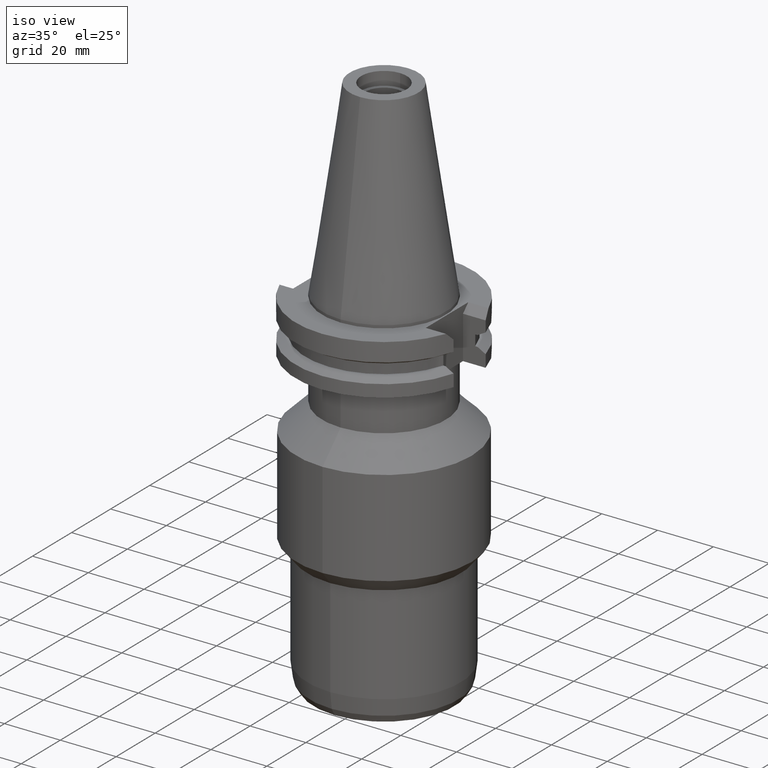
[diagram: clean part render]
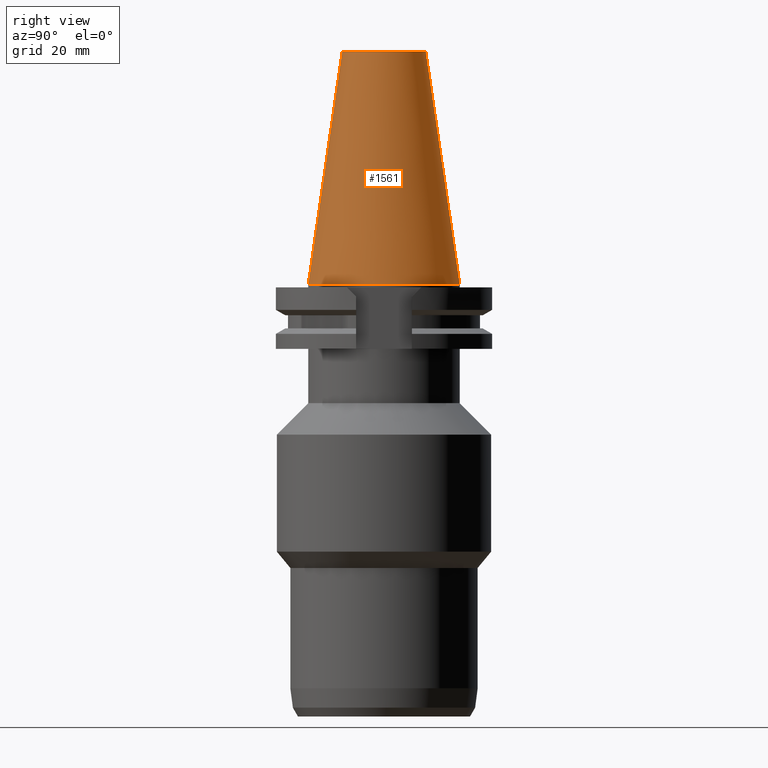
[diagram: tour spotlight — one face highlighted and labeled with its STEP entity id]
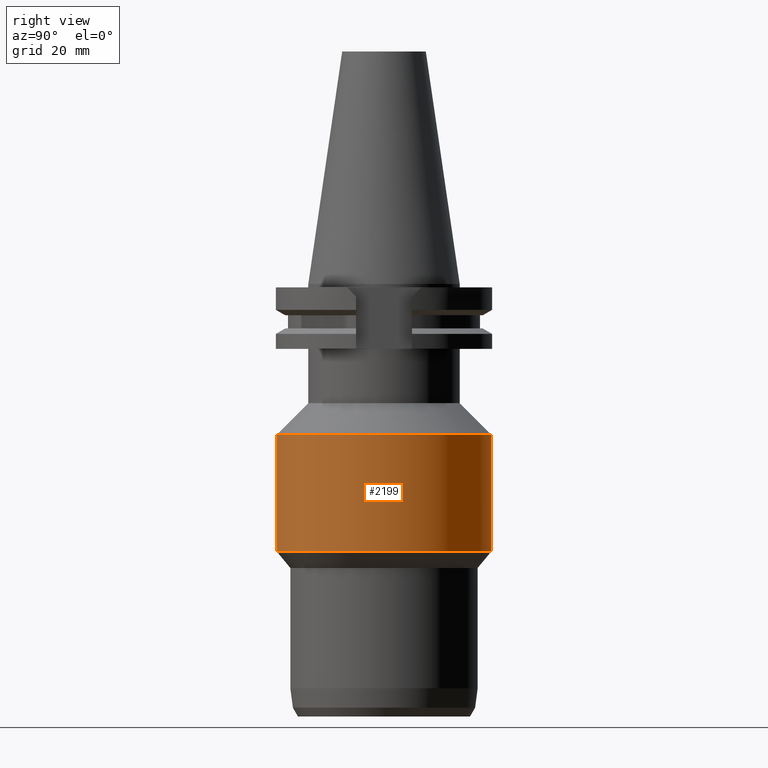
[diagram: tour spotlight — one face highlighted and labeled with its STEP entity id]
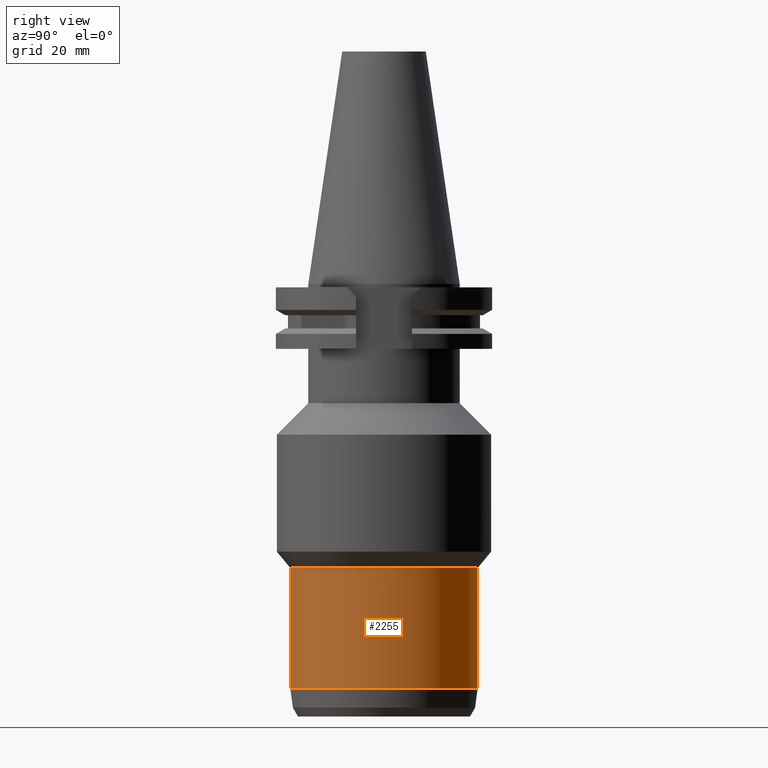
[diagram: tour spotlight — one face highlighted and labeled with its STEP entity id]
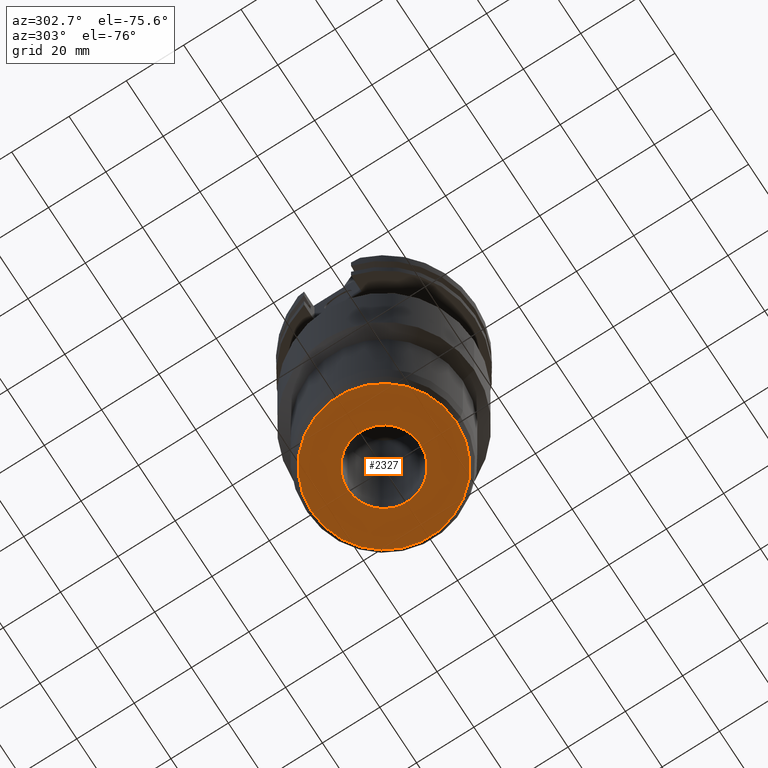
[diagram: tour spotlight — one face highlighted and labeled with its STEP entity id]
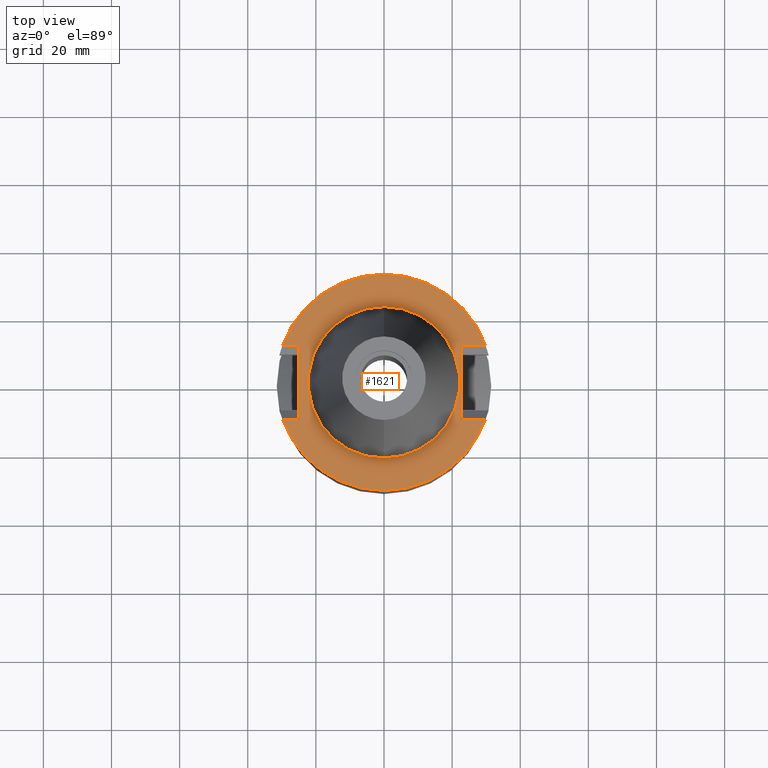
[diagram: tour spotlight — one face highlighted and labeled with its STEP entity id]
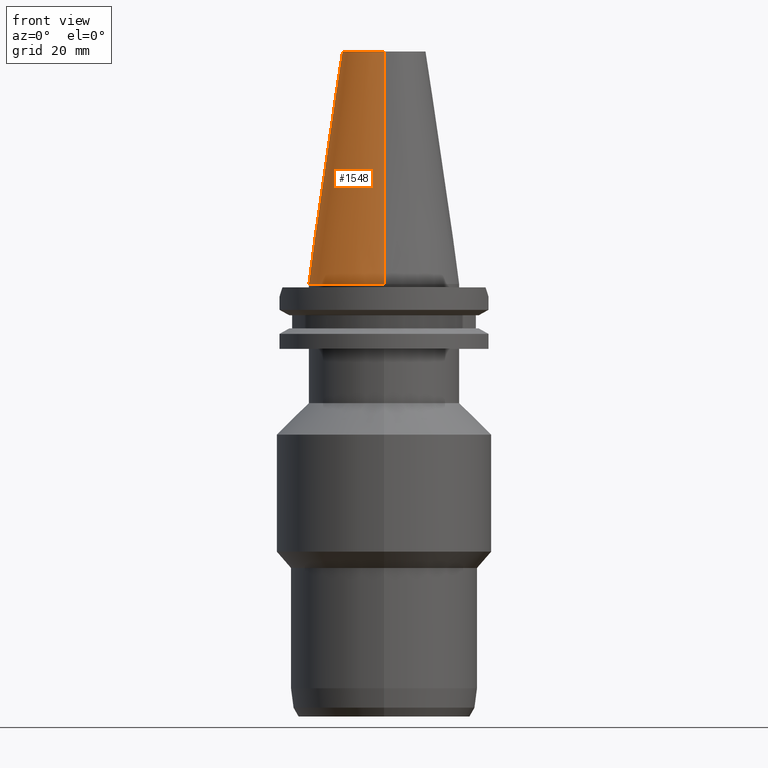
[diagram: tour spotlight — one face highlighted and labeled with its STEP entity id]
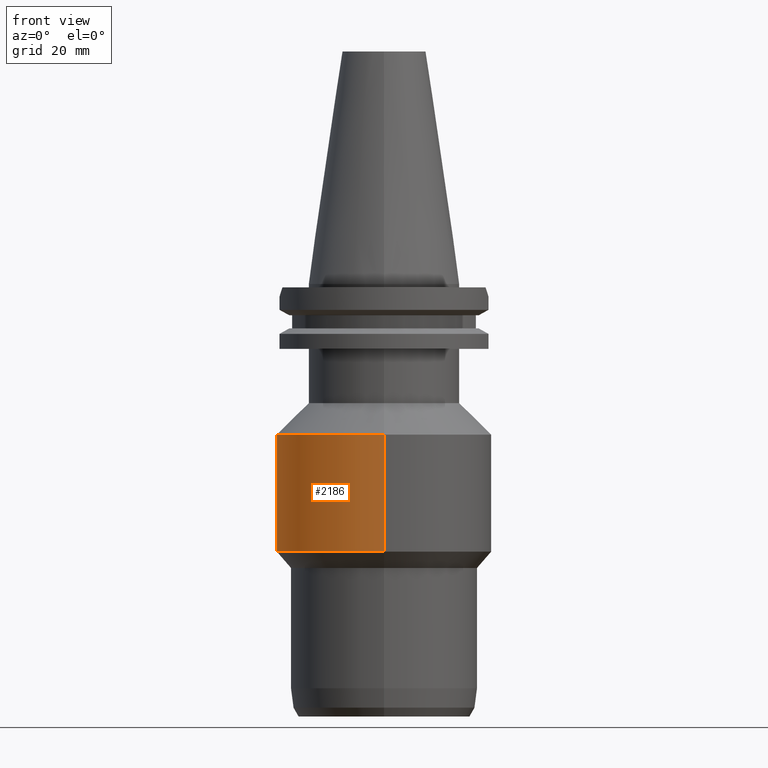
[diagram: tour spotlight — one face highlighted and labeled with its STEP entity id]
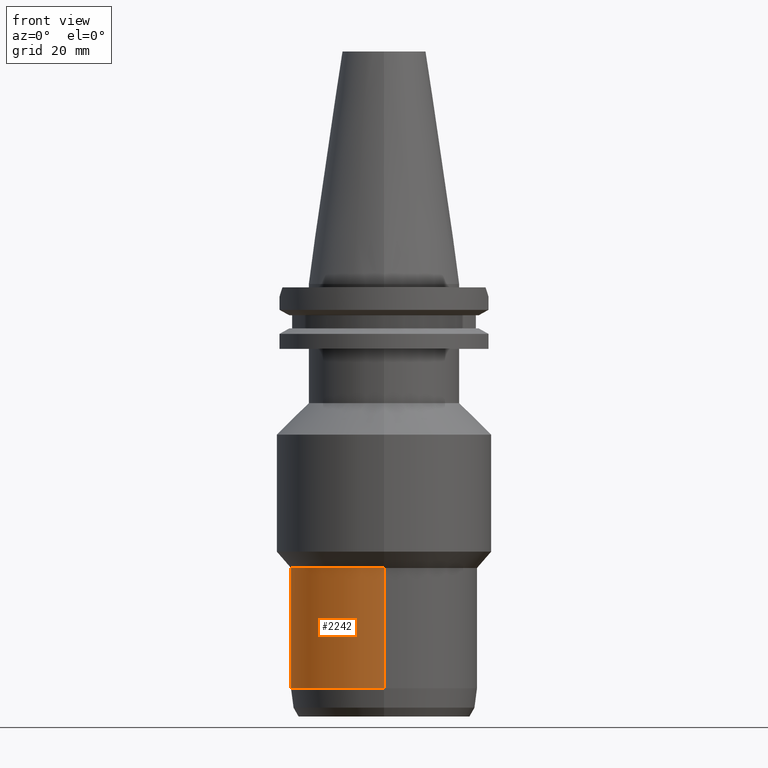
[diagram: tour spotlight — one face highlighted and labeled with its STEP entity id]
A machine part: a face-by-face anatomy tour. The part has 65 B-rep faces; the first image is the clean iso view, then the 8 largest visible faces are spotlighted one at a time (largest first), each with its STEP entity span.

Face 1 — right view, entity #1561. In plain terms, the highlighted conical surface has half-angle 8.297 deg.
Definition (entity closure, byte-faithful):
#26=CARTESIAN_POINT('',(0.E0,1.642557519356E-14,6.825E1));
#27=DIRECTION('',(0.E0,0.E0,-1.E0));
#28=DIRECTION('',(0.E0,1.E0,0.E0));
#29=AXIS2_PLACEMENT_3D('',#26,#27,#28);
#50=DIRECTION('',(0.E0,-1.443069799457E-1,-9.895329683942E-1));
#51=VECTOR('',#50,6.897193138573E1);
#52=CARTESIAN_POINT('',(0.E0,-1.227186888070E1,6.825E1));
#53=LINE('',#52,#51);
#65=DIRECTION('',(0.E0,1.443069799457E-1,-9.895329683942E-1));
#66=VECTOR('',#65,6.897193138573E1);
#67=CARTESIAN_POINT('',(0.E0,1.227186888070E1,6.825E1));
#68=LINE('',#67,#66);
#72=CARTESIAN_POINT('',(0.E0,1.642557519356E-14,-3.126388037344E-13));
#73=DIRECTION('',(0.E0,0.E0,-1.E0));
#74=DIRECTION('',(0.E0,1.E0,0.E0));
#75=AXIS2_PLACEMENT_3D('',#72,#73,#74);
#1302=CARTESIAN_POINT('',(0.E0,-1.227186888070E1,6.825E1));
#1303=CARTESIAN_POINT('',(0.E0,1.227186888070E1,6.825E1));
#1304=VERTEX_POINT('',#1302);
#1305=VERTEX_POINT('',#1303);
#1508=CARTESIAN_POINT('',(0.E0,2.2225E1,-2.131628207280E-13));
#1509=VERTEX_POINT('',#1508);
#1510=CARTESIAN_POINT('',(0.E0,-2.2225E1,-2.131628207280E-13));
#1511=VERTEX_POINT('',#1510);
#1549=CARTESIAN_POINT('',(0.E0,1.642557519356E-14,3.4125E1));
#1550=DIRECTION('',(0.E0,0.E0,-1.E0));
#1551=DIRECTION('',(0.E0,-1.E0,0.E0));
#1552=AXIS2_PLACEMENT_3D('',#1549,#1550,#1551);
#1553=CONICAL_SURFACE('',#1552,1.724843444035E1,8.29715E0);
#1554=ORIENTED_EDGE('',*,*,#1539,.T.);
#1556=ORIENTED_EDGE('',*,*,#1555,.T.);
#1557=ORIENTED_EDGE('',*,*,#1542,.F.);
#1558=ORIENTED_EDGE('',*,*,#1523,.F.);
#1559=EDGE_LOOP('',(#1554,#1556,#1557,#1558));
#1560=FACE_OUTER_BOUND('',#1559,.F.);
#30=CIRCLE('',#29,1.227186888070E1);
#76=CIRCLE('',#75,2.2225E1);
#1523=EDGE_CURVE('',#1305,#1304,#30,.T.);
#1539=EDGE_CURVE('',#1305,#1509,#68,.T.);
#1542=EDGE_CURVE('',#1304,#1511,#53,.T.);
#1555=EDGE_CURVE('',#1509,#1511,#76,.T.);
#1561=ADVANCED_FACE('',(#1560),#1553,.T.);

Face 2 — right view, entity #2199. In plain terms, the highlighted cylindrical surface (partial cylindrical patch) has radius 31.45 mm, axis along (0, 0, -1).
Definition (entity closure, byte-faithful):
#869=CARTESIAN_POINT('',(0.E0,0.E0,-4.4225E1));
#870=DIRECTION('',(0.E0,0.E0,-1.E0));
#871=DIRECTION('',(0.E0,1.E0,0.E0));
#872=AXIS2_PLACEMENT_3D('',#869,#870,#871);
#908=DIRECTION('',(0.E0,-2.077368580186E-14,-1.E0));
#909=VECTOR('',#908,3.4375E1);
#910=CARTESIAN_POINT('',(0.E0,-3.145E1,-4.4225E1));
#911=LINE('',#910,#909);
#915=DIRECTION('',(0.E0,2.077368580186E-14,-1.E0));
#916=VECTOR('',#915,3.4375E1);
#917=CARTESIAN_POINT('',(0.E0,3.145E1,-4.4225E1));
#918=LINE('',#917,#916);
#937=CARTESIAN_POINT('',(0.E0,0.E0,-7.86E1));
#938=DIRECTION('',(0.E0,0.E0,1.E0));
#939=DIRECTION('',(0.E0,-1.E0,0.E0));
#940=AXIS2_PLACEMENT_3D('',#937,#938,#939);
#1366=CARTESIAN_POINT('',(0.E0,3.145E1,-7.86E1));
#1367=VERTEX_POINT('',#1366);
#1368=CARTESIAN_POINT('',(0.E0,-3.145E1,-7.86E1));
#1369=VERTEX_POINT('',#1368);
#1370=CARTESIAN_POINT('',(0.E0,3.145E1,-4.4225E1));
#1371=VERTEX_POINT('',#1370);
#1372=CARTESIAN_POINT('',(0.E0,-3.145E1,-4.4225E1));
#1373=VERTEX_POINT('',#1372);
#2187=CARTESIAN_POINT('',(0.E0,2.180024383332E-14,7.80125E1));
#2188=DIRECTION('',(0.E0,0.E0,-1.E0));
#2189=DIRECTION('',(0.E0,-1.E0,0.E0));
#2190=AXIS2_PLACEMENT_3D('',#2187,#2188,#2189);
#2191=CYLINDRICAL_SURFACE('',#2190,3.145E1);
#2192=ORIENTED_EDGE('',*,*,#2177,.T.);
#2194=ORIENTED_EDGE('',*,*,#2193,.F.);
#2195=ORIENTED_EDGE('',*,*,#2180,.F.);
#2196=ORIENTED_EDGE('',*,*,#2151,.F.);
#2197=EDGE_LOOP('',(#2192,#2194,#2195,#2196));
#2198=FACE_OUTER_BOUND('',#2197,.F.);
#873=CIRCLE('',#872,3.145E1);
#941=CIRCLE('',#940,3.145E1);
#2151=EDGE_CURVE('',#1371,#1373,#873,.T.);
#2177=EDGE_CURVE('',#1371,#1367,#918,.T.);
#2180=EDGE_CURVE('',#1373,#1369,#911,.T.);
#2193=EDGE_CURVE('',#1369,#1367,#941,.T.);
#2199=ADVANCED_FACE('',(#2198),#2191,.T.);

Face 3 — right view, entity #2255. In plain terms, the highlighted cylindrical surface (partial cylindrical patch) has radius 27.5 mm, axis along (0, 0, -1).
Definition (entity closure, byte-faithful):
#929=CARTESIAN_POINT('',(0.E0,0.E0,-8.337846436593E1));
#930=DIRECTION('',(0.E0,0.E0,-1.E0));
#931=DIRECTION('',(0.E0,1.E0,0.E0));
#932=AXIS2_PLACEMENT_3D('',#929,#930,#931);
#968=DIRECTION('',(0.E0,0.E0,-1.E0));
#969=VECTOR('',#968,3.533153563407E1);
#970=CARTESIAN_POINT('',(0.E0,-2.75E1,-8.337846436593E1));
#971=LINE('',#970,#969);
#975=DIRECTION('',(0.E0,0.E0,-1.E0));
#976=VECTOR('',#975,3.533153563407E1);
#977=CARTESIAN_POINT('',(0.E0,2.75E1,-8.337846436593E1));
#978=LINE('',#977,#976);
#989=CARTESIAN_POINT('',(0.E0,0.E0,-1.1871E2));
#990=DIRECTION('',(0.E0,0.E0,1.E0));
#991=DIRECTION('',(0.E0,-1.E0,0.E0));
#992=AXIS2_PLACEMENT_3D('',#989,#990,#991);
#1358=CARTESIAN_POINT('',(0.E0,2.75E1,-1.1871E2));
#1359=VERTEX_POINT('',#1358);
#1360=CARTESIAN_POINT('',(0.E0,-2.75E1,-1.1871E2));
#1361=VERTEX_POINT('',#1360);
#1362=CARTESIAN_POINT('',(0.E0,2.75E1,-8.337846436593E1));
#1363=VERTEX_POINT('',#1362);
#1364=CARTESIAN_POINT('',(0.E0,-2.75E1,-8.337846436593E1));
#1365=VERTEX_POINT('',#1364);
#2243=CARTESIAN_POINT('',(0.E0,2.180024383332E-14,7.80125E1));
#2244=DIRECTION('',(0.E0,0.E0,-1.E0));
#2245=DIRECTION('',(0.E0,-1.E0,0.E0));
#2246=AXIS2_PLACEMENT_3D('',#2243,#2244,#2245);
#2247=CYLINDRICAL_SURFACE('',#2246,2.75E1);
#2248=ORIENTED_EDGE('',*,*,#2233,.T.);
#2250=ORIENTED_EDGE('',*,*,#2249,.F.);
#2251=ORIENTED_EDGE('',*,*,#2236,.F.);
#2252=ORIENTED_EDGE('',*,*,#2207,.F.);
#2253=EDGE_LOOP('',(#2248,#2250,#2251,#2252));
#2254=FACE_OUTER_BOUND('',#2253,.F.);
#933=CIRCLE('',#932,2.75E1);
#993=CIRCLE('',#992,2.75E1);
#2207=EDGE_CURVE('',#1363,#1365,#933,.T.);
#2233=EDGE_CURVE('',#1363,#1359,#978,.T.);
#2236=EDGE_CURVE('',#1365,#1361,#971,.T.);
#2249=EDGE_CURVE('',#1361,#1359,#993,.T.);
#2255=ADVANCED_FACE('',(#2254),#2247,.T.);

Face 4 — auxiliary view, entity #2327. In plain terms, the highlighted planar face has unit normal (0, 0, -1).
Definition (entity closure, byte-faithful):
#1042=CARTESIAN_POINT('',(0.E0,0.E0,-1.27E2));
#1043=DIRECTION('',(0.E0,0.E0,1.E0));
#1044=DIRECTION('',(0.E0,-1.E0,0.E0));
#1045=AXIS2_PLACEMENT_3D('',#1042,#1043,#1044);
#1050=CARTESIAN_POINT('',(0.E0,0.E0,-1.27E2));
#1051=DIRECTION('',(0.E0,0.E0,1.E0));
#1052=DIRECTION('',(0.E0,1.E0,0.E0));
#1053=AXIS2_PLACEMENT_3D('',#1050,#1051,#1052);
#1058=CARTESIAN_POINT('',(0.E0,2.180024383332E-14,-1.27E2));
#1059=DIRECTION('',(0.E0,0.E0,-1.E0));
#1060=DIRECTION('',(0.E0,-1.E0,0.E0));
#1061=AXIS2_PLACEMENT_3D('',#1058,#1059,#1060);
#1066=CARTESIAN_POINT('',(0.E0,2.180024383332E-14,-1.27E2));
#1067=DIRECTION('',(0.E0,0.E0,-1.E0));
#1068=DIRECTION('',(0.E0,1.E0,0.E0));
#1069=AXIS2_PLACEMENT_3D('',#1066,#1067,#1068);
#1346=CARTESIAN_POINT('',(0.E0,1.27E1,-1.27E2));
#1347=VERTEX_POINT('',#1346);
#1348=CARTESIAN_POINT('',(0.E0,-1.27E1,-1.27E2));
#1349=VERTEX_POINT('',#1348);
#1350=CARTESIAN_POINT('',(0.E0,-2.525100000002E1,-1.27E2));
#1351=CARTESIAN_POINT('',(0.E0,2.525100000002E1,-1.27E2));
#1352=VERTEX_POINT('',#1350);
#1353=VERTEX_POINT('',#1351);
#2312=CARTESIAN_POINT('',(0.E0,0.E0,-1.27E2));
#2313=DIRECTION('',(0.E0,0.E0,-1.E0));
#2314=DIRECTION('',(0.E0,-1.E0,0.E0));
#2315=AXIS2_PLACEMENT_3D('',#2312,#2313,#2314);
#2316=PLANE('',#2315);
#2317=ORIENTED_EDGE('',*,*,#2305,.T.);
#2318=ORIENTED_EDGE('',*,*,#2294,.T.);
#2319=EDGE_LOOP('',(#2317,#2318));
#2320=FACE_OUTER_BOUND('',#2319,.F.);
#2322=ORIENTED_EDGE('',*,*,#2321,.T.);
#2324=ORIENTED_EDGE('',*,*,#2323,.T.);
#2325=EDGE_LOOP('',(#2322,#2324));
#2326=FACE_BOUND('',#2325,.F.);
#1046=CIRCLE('',#1045,2.525100000002E1);
#1054=CIRCLE('',#1053,2.525100000002E1);
#1062=CIRCLE('',#1061,1.27E1);
#1070=CIRCLE('',#1069,1.27E1);
#2294=EDGE_CURVE('',#1353,#1352,#1054,.T.);
#2305=EDGE_CURVE('',#1352,#1353,#1046,.T.);
#2321=EDGE_CURVE('',#1349,#1347,#1062,.T.);
#2323=EDGE_CURVE('',#1347,#1349,#1070,.T.);
#2327=ADVANCED_FACE('',(#2320,#2326),#2316,.T.);

Face 5 — top view, entity #1621. In plain terms, the highlighted planar face has unit normal (0, 0, -1).
Definition (entity closure, byte-faithful):
#94=DIRECTION('',(0.E0,-1.E0,0.E0));
#95=VECTOR('',#94,2.178E1);
#96=CARTESIAN_POINT('',(2.257E1,1.089E1,-1.E0));
#97=LINE('',#96,#95);
#101=DIRECTION('',(1.E0,5.436335033290E-14,0.E0));
#102=VECTOR('',#101,7.253990343347E0);
#103=CARTESIAN_POINT('',(2.257E1,-1.089E1,-1.E0));
#104=LINE('',#103,#102);
#108=CARTESIAN_POINT('',(0.E0,2.180024383332E-14,-9.999999999999E-1));
#109=DIRECTION('',(0.E0,0.E0,-1.E0));
#110=DIRECTION('',(9.393382785306E-1,-3.429921259843E-1,0.E0));
#111=AXIS2_PLACEMENT_3D('',#108,#109,#110);
#116=CARTESIAN_POINT('',(0.E0,2.180024383332E-14,-9.999999999999E-1));
#117=DIRECTION('',(0.E0,0.E0,-1.E0));
#118=DIRECTION('',(0.E0,-1.E0,0.E0));
#119=AXIS2_PLACEMENT_3D('',#116,#117,#118);
#124=DIRECTION('',(-1.E0,-8.031026493744E-14,0.E0));
#125=VECTOR('',#124,4.843990343347E0);
#126=CARTESIAN_POINT('',(-2.498E1,1.089E1,-1.E0));
#127=LINE('',#126,#125);
#131=CARTESIAN_POINT('',(0.E0,2.180024383332E-14,-9.999999999999E-1));
#132=DIRECTION('',(0.E0,0.E0,-1.E0));
#133=DIRECTION('',(-9.393382785306E-1,3.429921259843E-1,0.E0));
#134=AXIS2_PLACEMENT_3D('',#131,#132,#133);
#139=CARTESIAN_POINT('',(0.E0,2.180024383332E-14,-9.999999999999E-1));
#140=DIRECTION('',(0.E0,0.E0,-1.E0));
#141=DIRECTION('',(0.E0,1.E0,0.E0));
#142=AXIS2_PLACEMENT_3D('',#139,#140,#141);
#147=CARTESIAN_POINT('',(0.E0,2.180024383332E-14,-9.999999999998E-1));
#148=DIRECTION('',(0.E0,0.E0,1.E0));
#149=DIRECTION('',(0.E0,-1.E0,0.E0));
#150=AXIS2_PLACEMENT_3D('',#147,#148,#149);
#155=CARTESIAN_POINT('',(0.E0,2.180024383332E-14,-9.999999999998E-1));
#156=DIRECTION('',(0.E0,0.E0,1.E0));
#157=DIRECTION('',(0.E0,1.E0,0.E0));
#158=AXIS2_PLACEMENT_3D('',#155,#156,#157);
#291=DIRECTION('',(1.E0,-5.289407059417E-14,0.E0));
#292=VECTOR('',#291,7.253990343348E0);
#293=CARTESIAN_POINT('',(2.257E1,1.089E1,-1.E0));
#294=LINE('',#293,#292);
#308=CARTESIAN_POINT('',(2.982399034335E1,1.089E1,-1.000000000001E0));
#335=DIRECTION('',(0.E0,-1.E0,0.E0));
#336=VECTOR('',#335,2.178E1);
#337=CARTESIAN_POINT('',(-2.498E1,1.089E1,-1.E0));
#338=LINE('',#337,#336);
#561=DIRECTION('',(-1.E0,8.031026493744E-14,0.E0));
#562=VECTOR('',#561,4.843990343348E0);
#563=CARTESIAN_POINT('',(-2.498E1,-1.089E1,-1.E0));
#564=LINE('',#563,#562);
#575=CARTESIAN_POINT('',(2.982399034335E1,-1.089E1,-1.000000000001E0));
#600=CARTESIAN_POINT('',(-2.982399034335E1,-1.089E1,-1.000000000001E0));
#1404=CARTESIAN_POINT('',(2.257E1,-1.089E1,-1.E0));
#1405=VERTEX_POINT('',#1404);
#1406=CARTESIAN_POINT('',(2.257E1,1.089E1,-1.E0));
#1407=VERTEX_POINT('',#1406);
#1447=CARTESIAN_POINT('',(-2.498E1,1.089E1,-1.E0));
#1448=VERTEX_POINT('',#1447);
#1449=CARTESIAN_POINT('',(-2.498E1,-1.089E1,-1.E0));
#1450=VERTEX_POINT('',#1449);
#1493=VERTEX_POINT('',#575);
#1494=VERTEX_POINT('',#600);
#1495=CARTESIAN_POINT('',(-1.432899828923E-14,-3.175E1,-9.999999999999E-1));
#1496=VERTEX_POINT('',#1495);
#1499=VERTEX_POINT('',#308);
#1500=CARTESIAN_POINT('',(0.E0,3.175E1,-9.999999999999E-1));
#1501=VERTEX_POINT('',#1500);
#1502=CARTESIAN_POINT('',(-2.982399034335E1,1.089E1,-9.999999999999E-1));
#1503=VERTEX_POINT('',#1502);
#1504=CARTESIAN_POINT('',(0.E0,-2.2225E1,-9.999999999998E-1));
#1505=CARTESIAN_POINT('',(0.E0,2.2225E1,-9.999999999998E-1));
#1506=VERTEX_POINT('',#1504);
#1507=VERTEX_POINT('',#1505);
#1590=CARTESIAN_POINT('',(0.E0,1.212400331156E-14,-1.E0));
#1591=DIRECTION('',(0.E0,0.E0,-1.E0));
#1592=DIRECTION('',(0.E0,-1.E0,0.E0));
#1593=AXIS2_PLACEMENT_3D('',#1590,#1591,#1592);
#1594=PLANE('',#1593);
#1596=ORIENTED_EDGE('',*,*,#1595,.T.);
#1598=ORIENTED_EDGE('',*,*,#1597,.T.);
#1600=ORIENTED_EDGE('',*,*,#1599,.T.);
#1602=ORIENTED_EDGE('',*,*,#1601,.T.);
#1604=ORIENTED_EDGE('',*,*,#1603,.F.);
#1606=ORIENTED_EDGE('',*,*,#1605,.F.);
#1608=ORIENTED_EDGE('',*,*,#1607,.T.);
#1610=ORIENTED_EDGE('',*,*,#1609,.T.);
#1612=ORIENTED_EDGE('',*,*,#1611,.T.);
#1614=ORIENTED_EDGE('',*,*,#1613,.F.);
#1615=EDGE_LOOP('',(#1596,#1598,#1600,#1602,#1604,#1606,#1608,#1610,#1612,
#1614));
#1616=FACE_OUTER_BOUND('',#1615,.F.);
#1617=ORIENTED_EDGE('',*,*,#1569,.T.);
#1618=ORIENTED_EDGE('',*,*,#1585,.T.);
#1619=EDGE_LOOP('',(#1617,#1618));
#1620=FACE_BOUND('',#1619,.F.);
#112=CIRCLE('',#111,3.175E1);
#120=CIRCLE('',#119,3.175E1);
#135=CIRCLE('',#134,3.175E1);
#143=CIRCLE('',#142,3.175E1);
#151=CIRCLE('',#150,2.2225E1);
#159=CIRCLE('',#158,2.2225E1);
#1569=EDGE_CURVE('',#1506,#1507,#151,.T.);
#1585=EDGE_CURVE('',#1507,#1506,#159,.T.);
#1595=EDGE_CURVE('',#1407,#1405,#97,.T.);
#1597=EDGE_CURVE('',#1405,#1493,#104,.T.);
#1599=EDGE_CURVE('',#1493,#1496,#112,.T.);
#1601=EDGE_CURVE('',#1496,#1494,#120,.T.);
#1603=EDGE_CURVE('',#1450,#1494,#564,.T.);
#1605=EDGE_CURVE('',#1448,#1450,#338,.T.);
#1607=EDGE_CURVE('',#1448,#1503,#127,.T.);
#1609=EDGE_CURVE('',#1503,#1501,#135,.T.);
#1611=EDGE_CURVE('',#1501,#1499,#143,.T.);
#1613=EDGE_CURVE('',#1407,#1499,#294,.T.);
#1621=ADVANCED_FACE('',(#1616,#1620),#1594,.F.);

Face 6 — front view, entity #1548. In plain terms, the highlighted conical surface has half-angle 8.297 deg.
Definition (entity closure, byte-faithful):
#17=CARTESIAN_POINT('',(0.E0,1.642557519356E-14,6.825E1));
#18=DIRECTION('',(0.E0,0.E0,-1.E0));
#19=DIRECTION('',(0.E0,-1.E0,0.E0));
#20=AXIS2_PLACEMENT_3D('',#17,#18,#19);
#50=DIRECTION('',(0.E0,-1.443069799457E-1,-9.895329683942E-1));
#51=VECTOR('',#50,6.897193138573E1);
#52=CARTESIAN_POINT('',(0.E0,-1.227186888070E1,6.825E1));
#53=LINE('',#52,#51);
#57=CARTESIAN_POINT('',(0.E0,1.642557519356E-14,-3.126388037344E-13));
#58=DIRECTION('',(0.E0,0.E0,-1.E0));
#59=DIRECTION('',(0.E0,-1.E0,0.E0));
#60=AXIS2_PLACEMENT_3D('',#57,#58,#59);
#65=DIRECTION('',(0.E0,1.443069799457E-1,-9.895329683942E-1));
#66=VECTOR('',#65,6.897193138573E1);
#67=CARTESIAN_POINT('',(0.E0,1.227186888070E1,6.825E1));
#68=LINE('',#67,#66);
#1302=CARTESIAN_POINT('',(0.E0,-1.227186888070E1,6.825E1));
#1303=CARTESIAN_POINT('',(0.E0,1.227186888070E1,6.825E1));
#1304=VERTEX_POINT('',#1302);
#1305=VERTEX_POINT('',#1303);
#1508=CARTESIAN_POINT('',(0.E0,2.2225E1,-2.131628207280E-13));
#1509=VERTEX_POINT('',#1508);
#1510=CARTESIAN_POINT('',(0.E0,-2.2225E1,-2.131628207280E-13));
#1511=VERTEX_POINT('',#1510);
#1534=CARTESIAN_POINT('',(0.E0,1.642557519356E-14,3.4125E1));
#1535=DIRECTION('',(0.E0,0.E0,-1.E0));
#1536=DIRECTION('',(0.E0,-1.E0,0.E0));
#1537=AXIS2_PLACEMENT_3D('',#1534,#1535,#1536);
#1538=CONICAL_SURFACE('',#1537,1.724843444035E1,8.29715E0);
#1540=ORIENTED_EDGE('',*,*,#1539,.F.);
#1541=ORIENTED_EDGE('',*,*,#1521,.F.);
#1543=ORIENTED_EDGE('',*,*,#1542,.T.);
#1545=ORIENTED_EDGE('',*,*,#1544,.T.);
#1546=EDGE_LOOP('',(#1540,#1541,#1543,#1545));
#1547=FACE_OUTER_BOUND('',#1546,.F.);
#21=CIRCLE('',#20,1.227186888070E1);
#61=CIRCLE('',#60,2.2225E1);
#1521=EDGE_CURVE('',#1304,#1305,#21,.T.);
#1539=EDGE_CURVE('',#1305,#1509,#68,.T.);
#1542=EDGE_CURVE('',#1304,#1511,#53,.T.);
#1544=EDGE_CURVE('',#1511,#1509,#61,.T.);
#1548=ADVANCED_FACE('',(#1547),#1538,.T.);

Face 7 — front view, entity #2186. In plain terms, the highlighted cylindrical surface (partial cylindrical patch) has radius 31.45 mm, axis along (0, 0, -1).
Definition (entity closure, byte-faithful):
#900=CARTESIAN_POINT('',(0.E0,0.E0,-4.4225E1));
#901=DIRECTION('',(0.E0,0.E0,-1.E0));
#902=DIRECTION('',(0.E0,-1.E0,0.E0));
#903=AXIS2_PLACEMENT_3D('',#900,#901,#902);
#908=DIRECTION('',(0.E0,-2.077368580186E-14,-1.E0));
#909=VECTOR('',#908,3.4375E1);
#910=CARTESIAN_POINT('',(0.E0,-3.145E1,-4.4225E1));
#911=LINE('',#910,#909);
#915=DIRECTION('',(0.E0,2.077368580186E-14,-1.E0));
#916=VECTOR('',#915,3.4375E1);
#917=CARTESIAN_POINT('',(0.E0,3.145E1,-4.4225E1));
#918=LINE('',#917,#916);
#945=CARTESIAN_POINT('',(0.E0,0.E0,-7.86E1));
#946=DIRECTION('',(0.E0,0.E0,1.E0));
#947=DIRECTION('',(0.E0,1.E0,0.E0));
#948=AXIS2_PLACEMENT_3D('',#945,#946,#947);
#1366=CARTESIAN_POINT('',(0.E0,3.145E1,-7.86E1));
#1367=VERTEX_POINT('',#1366);
#1368=CARTESIAN_POINT('',(0.E0,-3.145E1,-7.86E1));
#1369=VERTEX_POINT('',#1368);
#1370=CARTESIAN_POINT('',(0.E0,3.145E1,-4.4225E1));
#1371=VERTEX_POINT('',#1370);
#1372=CARTESIAN_POINT('',(0.E0,-3.145E1,-4.4225E1));
#1373=VERTEX_POINT('',#1372);
#2172=CARTESIAN_POINT('',(0.E0,2.180024383332E-14,7.80125E1));
#2173=DIRECTION('',(0.E0,0.E0,-1.E0));
#2174=DIRECTION('',(0.E0,-1.E0,0.E0));
#2175=AXIS2_PLACEMENT_3D('',#2172,#2173,#2174);
#2176=CYLINDRICAL_SURFACE('',#2175,3.145E1);
#2178=ORIENTED_EDGE('',*,*,#2177,.F.);
#2179=ORIENTED_EDGE('',*,*,#2167,.F.);
#2181=ORIENTED_EDGE('',*,*,#2180,.T.);
#2183=ORIENTED_EDGE('',*,*,#2182,.F.);
#2184=EDGE_LOOP('',(#2178,#2179,#2181,#2183));
#2185=FACE_OUTER_BOUND('',#2184,.F.);
#904=CIRCLE('',#903,3.145E1);
#949=CIRCLE('',#948,3.145E1);
#2167=EDGE_CURVE('',#1373,#1371,#904,.T.);
#2177=EDGE_CURVE('',#1371,#1367,#918,.T.);
#2180=EDGE_CURVE('',#1373,#1369,#911,.T.);
#2182=EDGE_CURVE('',#1367,#1369,#949,.T.);
#2186=ADVANCED_FACE('',(#2185),#2176,.T.);

Face 8 — front view, entity #2242. In plain terms, the highlighted cylindrical surface (partial cylindrical patch) has radius 27.5 mm, axis along (0, 0, -1).
Definition (entity closure, byte-faithful):
#960=CARTESIAN_POINT('',(0.E0,0.E0,-8.337846436593E1));
#961=DIRECTION('',(0.E0,0.E0,-1.E0));
#962=DIRECTION('',(0.E0,-1.E0,0.E0));
#963=AXIS2_PLACEMENT_3D('',#960,#961,#962);
#968=DIRECTION('',(0.E0,0.E0,-1.E0));
#969=VECTOR('',#968,3.533153563407E1);
#970=CARTESIAN_POINT('',(0.E0,-2.75E1,-8.337846436593E1));
#971=LINE('',#970,#969);
#975=DIRECTION('',(0.E0,0.E0,-1.E0));
#976=VECTOR('',#975,3.533153563407E1);
#977=CARTESIAN_POINT('',(0.E0,2.75E1,-8.337846436593E1));
#978=LINE('',#977,#976);
#997=CARTESIAN_POINT('',(0.E0,0.E0,-1.1871E2));
#998=DIRECTION('',(0.E0,0.E0,1.E0));
#999=DIRECTION('',(0.E0,1.E0,0.E0));
#1000=AXIS2_PLACEMENT_3D('',#997,#998,#999);
#1358=CARTESIAN_POINT('',(0.E0,2.75E1,-1.1871E2));
#1359=VERTEX_POINT('',#1358);
#1360=CARTESIAN_POINT('',(0.E0,-2.75E1,-1.1871E2));
#1361=VERTEX_POINT('',#1360);
#1362=CARTESIAN_POINT('',(0.E0,2.75E1,-8.337846436593E1));
#1363=VERTEX_POINT('',#1362);
#1364=CARTESIAN_POINT('',(0.E0,-2.75E1,-8.337846436593E1));
#1365=VERTEX_POINT('',#1364);
#2228=CARTESIAN_POINT('',(0.E0,2.180024383332E-14,7.80125E1));
#2229=DIRECTION('',(0.E0,0.E0,-1.E0));
#2230=DIRECTION('',(0.E0,-1.E0,0.E0));
#2231=AXIS2_PLACEMENT_3D('',#2228,#2229,#2230);
#2232=CYLINDRICAL_SURFACE('',#2231,2.75E1);
#2234=ORIENTED_EDGE('',*,*,#2233,.F.);
#2235=ORIENTED_EDGE('',*,*,#2223,.F.);
#2237=ORIENTED_EDGE('',*,*,#2236,.T.);
#2239=ORIENTED_EDGE('',*,*,#2238,.F.);
#2240=EDGE_LOOP('',(#2234,#2235,#2237,#2239));
#2241=FACE_OUTER_BOUND('',#2240,.F.);
#964=CIRCLE('',#963,2.75E1);
#1001=CIRCLE('',#1000,2.75E1);
#2223=EDGE_CURVE('',#1365,#1363,#964,.T.);
#2233=EDGE_CURVE('',#1363,#1359,#978,.T.);
#2236=EDGE_CURVE('',#1365,#1361,#971,.T.);
#2238=EDGE_CURVE('',#1359,#1361,#1001,.T.);
#2242=ADVANCED_FACE('',(#2241),#2232,.T.);